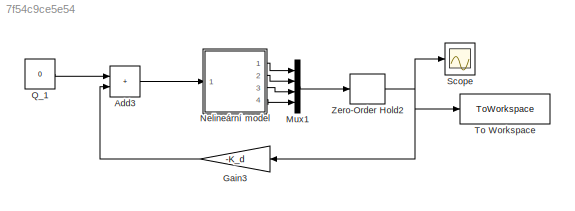
MODEL slx_7f54c9ce5e54
KIND model
CONFIG AbsTol = auto
CONFIG EnableMultiTasking = off
CONFIG FixedStep = auto
CONFIG MaxStep = auto
CONFIG MinStep = auto
CONFIG RelTol = 1e-3
CONFIG SampleTimeConstraint = Unconstrained
CONFIG SolverName = VariableStepAuto
CONFIG StartTime = 0.0
CONFIG StopTime = 20
BLOCK [Sum] Add3
  IconShape = rectangular
  Ports = [2, 1]
BLOCK [Gain] Gain3
  Gain = -K_d
  Multiplication = Matrix(K*u) (u vector)
  NameLocation = top
BLOCK [Mux] Mux1
  DisplayOption = bar
  Ports = [4, 1]
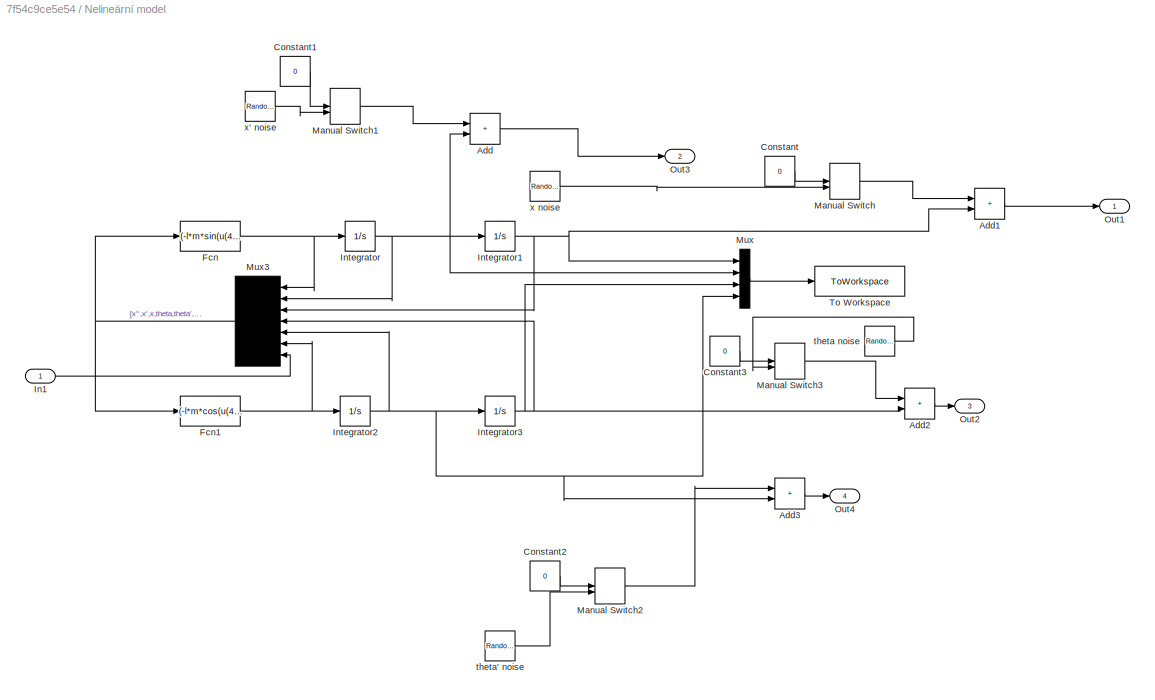
BLOCK [SubSystem] Nelineární model
  Ports = [1, 4]
  RequestExecContextInheritance = off
BLOCK [Sum] Nelineární model/Add
  IconShape = rectangular
  Ports = [2, 1]
BLOCK [Sum] Nelineární model/Add1
  IconShape = rectangular
  Ports = [2, 1]
BLOCK [Sum] Nelineární model/Add2
  IconShape = rectangular
  Ports = [2, 1]
BLOCK [Sum] Nelineární model/Add3
  IconShape = rectangular
  Ports = [2, 1]
BLOCK [Constant] Nelineární model/Constant
  Value = 0
BLOCK [Constant] Nelineární model/Constant1
  Value = 0
BLOCK [Constant] Nelineární model/Constant2
  Value = 0
BLOCK [Constant] Nelineární model/Constant3
  Value = 0
BLOCK [Fcn] Nelineární model/Fcn
  Expr = (-l*m*sin(u(4))*u(5)^2+u(7)-m*g*cos(u(4))*sin(u(4)))/(-m*(cos(u(4))^2)+m+M)
BLOCK [Fcn] Nelineární model/Fcn1
  Expr = (-l*m*cos(u(4))*sin(u(4))*u(5)^2+u(7)*cos(u(4))-g*m*sin(u(4))-M*g*sin(u(4)))/(l*(-m*((cos(u(4)))^2)+M+m))
BLOCK [Inport] Nelineární model/In1
BLOCK [Integrator] Nelineární model/Integrator
  Ports = [1, 1]
BLOCK [Integrator] Nelineární model/Integrator1
  Ports = [1, 1]
BLOCK [Integrator] Nelineární model/Integrator2
  Ports = [1, 1]
BLOCK [Integrator] Nelineární model/Integrator3
  InitialCondition = pi/6
  Ports = [1, 1]
BLOCK [ManualSwitch] Nelineární model/Manual Switch
  CurrentSetting = 0
BLOCK [ManualSwitch] Nelineární model/Manual Switch1
  CurrentSetting = 0
BLOCK [ManualSwitch] Nelineární model/Manual Switch2
  CurrentSetting = 0
BLOCK [ManualSwitch] Nelineární model/Manual Switch3
  CurrentSetting = 0
BLOCK [Mux] Nelineární model/Mux
  DisplayOption = bar
  Ports = [4, 1]
BLOCK [Mux] Nelineární model/Mux3
  DisplayOption = signals
  Inputs = 7
  NameLocation = top
  Ports = [7, 1]
BLOCK [Outport] Nelineární model/Out1
BLOCK [Outport] Nelineární model/Out2
  Port = 3
BLOCK [Outport] Nelineární model/Out3
  Port = 2
BLOCK [Outport] Nelineární model/Out4
  Port = 4
BLOCK [ToWorkspace] Nelineární model/To Workspace
  FixptAsFi = on
  MaxDataPoints = inf
  Ports = [1]
  SampleTime = -1
  SaveFormat = Timeseries
  VariableName = no_noise
BLOCK [RandomNumber] Nelineární model/theta noise
  SampleTime = 0.033
  Variance = 0.05^2
BLOCK [RandomNumber] Nelineární model/theta' noise
  SampleTime = 0.033
  Variance = 0.02^2
BLOCK [RandomNumber] Nelineární model/x noise
  SampleTime = 0.033
  Variance = 0.1^2
BLOCK [RandomNumber] Nelineární model/x' noise
  SampleTime = 0.033
  Variance = 0.02^2
BLOCK [Constant] Q_1
  Value = 0
BLOCK [Scope] Scope
  Floating = off
  NumInputPorts = 1
  Ports = [1]
  ScopeSpecificationString = Simulink.scopes.TimeScopeBlockCfg('CurrentConfiguration', extmgr.ConfigurationSet(extmgr.Configuration('Core','General UI',true),extmgr.Configuration('Core','Source UI',true),extmgr.Configuration('Sources','WiredSimulink',true),extmgr.Configuration('Visuals','Time Domain',true,'SerializedDisplays',{struct('MinYLimReal','-2.61399','MaxYLimReal','1.29897','YLabelReal','','MinYLimMag','0.00000','MaxY...<+1437ch>
BLOCK [ToWorkspace] To Workspace
  FixptAsFi = on
  MaxDataPoints = inf
  Ports = [1]
  SampleTime = -1
  SaveFormat = Timeseries
  VariableName = simout
BLOCK [ZeroOrderHold] Zero-Order Hold2
  SampleTime = Ts
LINE Add3:1 -> Nelineární model:1
LINE Gain3:1 -> Add3:2
LINE Mux1:1 -> Zero-Order Hold2:1
LINE Nelineární model/Add1:1 -> Nelineární model/Out1:1
LINE Nelineární model/Add2:1 -> Nelineární model/Out2:1
LINE Nelineární model/Add3:1 -> Nelineární model/Out4:1
LINE Nelineární model/Add:1 -> Nelineární model/Out3:1
LINE Nelineární model/Constant1:1 -> Nelineární model/Manual Switch1:1
LINE Nelineární model/Constant2:1 -> Nelineární model/Manual Switch2:1
LINE Nelineární model/Constant3:1 -> Nelineární model/Manual Switch3:1
LINE Nelineární model/Constant:1 -> Nelineární model/Manual Switch:1
NET Nelineární model/Fcn1:1 -> Nelineární model/Integrator2:1, Nelineární model/Mux3:6
NET Nelineární model/Fcn:1 -> Nelineární model/Integrator:1, Nelineární model/Mux3:1
LINE Nelineární model/In1:1 -> Nelineární model/Mux3:7
NET Nelineární model/Integrator1:1 -> Nelineární model/Add1:2, Nelineární model/Mux3:3, Nelineární model/Mux:1
NET Nelineární model/Integrator2:1 -> Nelineární model/Add3:2, Nelineární model/Integrator3:1, Nelineární model/Mux3:5, Nelineární model/Mux:4
NET Nelineární model/Integrator3:1 -> Nelineární model/Add2:2, Nelineární model/Mux3:4, Nelineární model/Mux:3
NET Nelineární model/Integrator:1 -> Nelineární model/Add:2, Nelineární model/Integrator1:1, Nelineární model/Mux3:2, Nelineární model/Mux:2
LINE Nelineární model/Manual Switch1:1 -> Nelineární model/Add:1
LINE Nelineární model/Manual Switch2:1 -> Nelineární model/Add3:1
LINE Nelineární model/Manual Switch3:1 -> Nelineární model/Add2:1
LINE Nelineární model/Manual Switch:1 -> Nelineární model/Add1:1
NET Nelineární model/Mux3:1 -> Nelineární model/Fcn1:1, Nelineární model/Fcn:1
LINE Nelineární model/Mux:1 -> Nelineární model/To Workspace:1
LINE Nelineární model/theta noise:1 -> Nelineární model/Manual Switch3:2
LINE Nelineární model/theta' noise:1 -> Nelineární model/Manual Switch2:2
LINE Nelineární model/x noise:1 -> Nelineární model/Manual Switch:2
LINE Nelineární model/x' noise:1 -> Nelineární model/Manual Switch1:2
LINE Nelineární model:1 -> Mux1:1
LINE Nelineární model:2 -> Mux1:2
LINE Nelineární model:3 -> Mux1:3
LINE Nelineární model:4 -> Mux1:4
LINE Q_1:1 -> Add3:1
NET Zero-Order Hold2:1 -> Gain3:1, Scope:1, To Workspace:1
note: NET lines group one-source signal fan-out (src -> all destinations, sorted); 1:1 wires keep LINE
